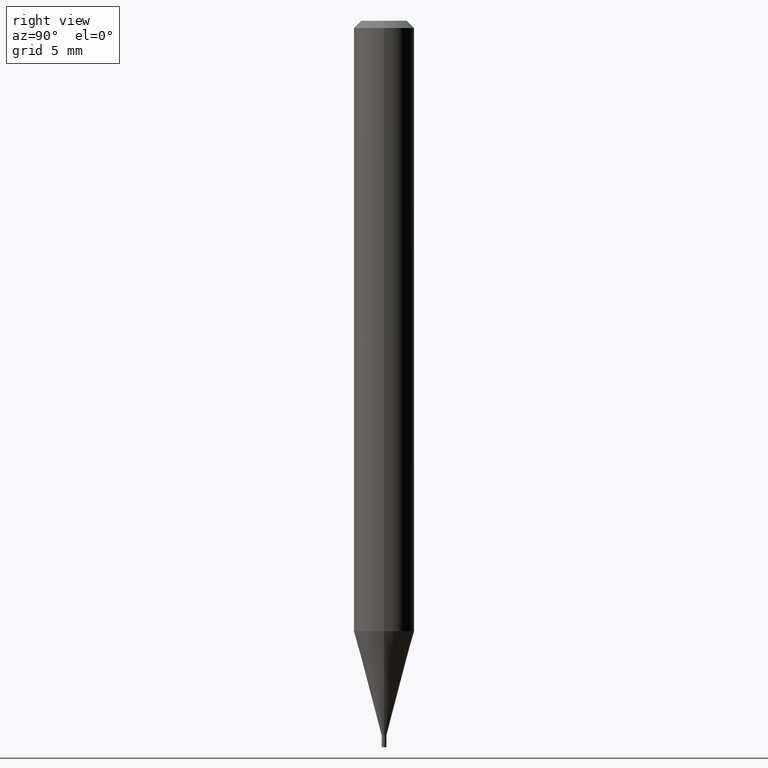
[diagram: clean part render]
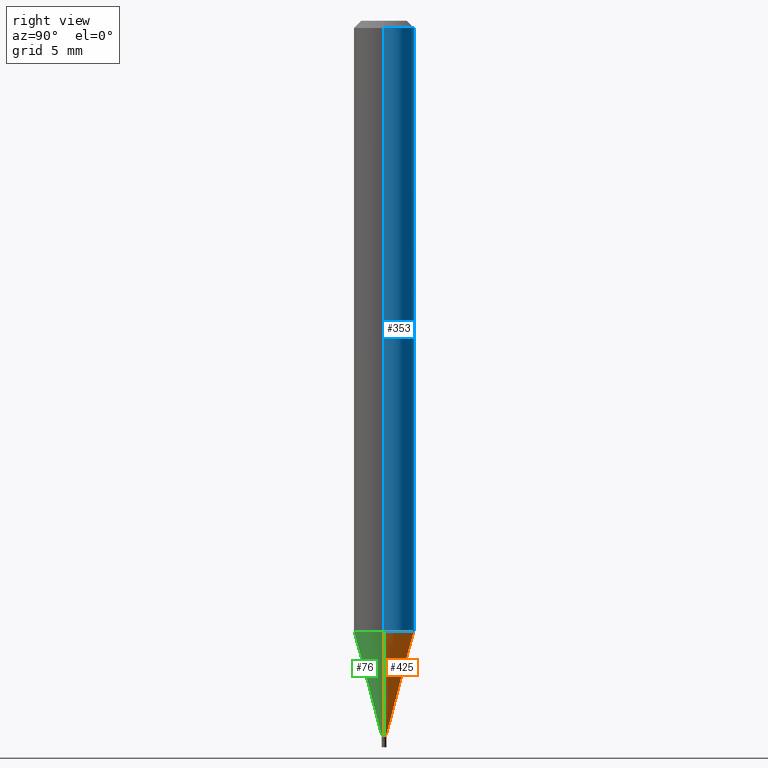
[diagram: same view with three faces highlighted in distinct colors, each labeled with its STEP entity id]
A machine part, right view with three faces highlighted in distinct colors.
Their STEP definitions:

[orange] entity #425 — the highlighted conical surface has half-angle 15 deg.
#30 = CIRCLE ( 'NONE', #381, 0.06250000000000000000 ) ;
#63 = EDGE_CURVE ( 'NONE', #138, #218, #247, .T. ) ;
#64 = DIRECTION ( 'NONE',  ( 1.000000000000000000, -6.982962677686262766E-15, 0.000000000000000000 ) ) ;
#66 = FACE_OUTER_BOUND ( 'NONE', #193, .T. ) ;
#74 = CARTESIAN_POINT ( 'NONE',  ( -0.004999999999999922042, -5.114407838005636380E-15, -1.475000000000000311 ) ) ;
#80 = AXIS2_PLACEMENT_3D ( 'NONE', #163, #298, #263 ) ;
#91 = LINE ( 'NONE', #231, #445 ) ;
#93 = CARTESIAN_POINT ( 'NONE',  ( 3.082286193725132894E-29, -4.400687794154770769E-15, -1.260407078564790062 ) ) ;
#118 = ORIENTED_EDGE ( 'NONE', *, *, #428, .F. ) ;
#122 = VERTEX_POINT ( 'NONE', #374 ) ;
#128 = VECTOR ( 'NONE', #313, 39.37007874015747433 ) ;
#138 = VERTEX_POINT ( 'NONE', #169 ) ;
#151 = CONICAL_SURFACE ( 'NONE', #80, 0.004999999999999922042, 0.2617993877991500740 ) ;
#163 = CARTESIAN_POINT ( 'NONE',  ( 3.607066489123076592E-29, -5.149934974793640632E-15, -1.475000000000000311 ) ) ;
#169 = CARTESIAN_POINT ( 'NONE',  ( -0.004999999999999922042, -4.535503211155172266E-15, -1.475000000000000311 ) ) ;
#192 = ORIENTED_EDGE ( 'NONE', *, *, #63, .T. ) ;
#193 = EDGE_LOOP ( 'NONE', ( #292, #192, #118, #284 ) ) ;
#208 = CARTESIAN_POINT ( 'NONE',  ( 0.06249999999999999306, -4.837122961510163228E-15, -1.260407078564790062 ) ) ;
#218 = VERTEX_POINT ( 'NONE', #415 ) ;
#219 = EDGE_CURVE ( 'NONE', #122, #359, #91, .T. ) ;
#223 = AXIS2_PLACEMENT_3D ( 'NONE', #413, #303, #301 ) ;
#231 = CARTESIAN_POINT ( 'NONE',  ( 0.004999999999999922042, -5.184849788182071492E-15, -1.475000000000000311 ) ) ;
#247 = LINE ( 'NONE', #74, #128 ) ;
#263 = DIRECTION ( 'NONE',  ( 1.000000000000000000, -6.982962677686247778E-15, 0.000000000000000000 ) ) ;
#284 = ORIENTED_EDGE ( 'NONE', *, *, #219, .F. ) ;
#292 = ORIENTED_EDGE ( 'NONE', *, *, #316, .T. ) ;
#298 = DIRECTION ( 'NONE',  ( -2.445468806185136597E-29, 3.491481338843145583E-15, 1.000000000000000000 ) ) ;
#300 = DIRECTION ( 'NONE',  ( 0.2588190451025213501, 1.565188264969621968E-15, 0.9659258262890682012 ) ) ;
#301 = DIRECTION ( 'NONE',  ( 1.000000000000000000, -6.982962677686247778E-15, 0.000000000000000000 ) ) ;
#303 = DIRECTION ( 'NONE',  ( -2.445468806185136597E-29, 3.491481338843145583E-15, 1.000000000000000000 ) ) ;
#304 = CIRCLE ( 'NONE', #223, 0.004999999999999922042 ) ;
#313 = DIRECTION ( 'NONE',  ( -0.2588190451025213501, 5.211531920934551042E-15, 0.9659258262890682012 ) ) ;
#316 = EDGE_CURVE ( 'NONE', #122, #138, #304, .T. ) ;
#359 = VERTEX_POINT ( 'NONE', #208 ) ;
#374 = CARTESIAN_POINT ( 'NONE',  ( 0.004999999999999922042, -5.184849788182071492E-15, -1.475000000000000311 ) ) ;
#380 = DIRECTION ( 'NONE',  ( -2.445468806185136597E-29, 3.491481338843145583E-15, 1.000000000000000000 ) ) ;
#381 = AXIS2_PLACEMENT_3D ( 'NONE', #93, #380, #64 ) ;
#413 = CARTESIAN_POINT ( 'NONE',  ( 3.607066489123076592E-29, -5.149934974793640632E-15, -1.475000000000000311 ) ) ;
#415 = CARTESIAN_POINT ( 'NONE',  ( -0.06249999999999999306, -3.956598584304708153E-15, -1.260407078564790062 ) ) ;
#425 = ADVANCED_FACE ( 'NONE', ( #66 ), #151, .T. ) ;
#428 = EDGE_CURVE ( 'NONE', #359, #218, #30, .T. ) ;
#445 = VECTOR ( 'NONE', #300, 39.37007874015747433 ) ;

[blue] entity #353 — the highlighted cylindrical surface (edge-blend (fillet) strip) has radius 1.5875 mm, axis along (-0, 0, 1).
#6 = DIRECTION ( 'NONE',  ( -2.445468806185136597E-29, 3.491481338843145583E-15, 1.000000000000000000 ) ) ;
#30 = CIRCLE ( 'NONE', #381, 0.06250000000000000000 ) ;
#59 = DIRECTION ( 'NONE',  ( -2.445468806185136877E-29, 3.491481338843145188E-15, 1.000000000000000000 ) ) ;
#64 = DIRECTION ( 'NONE',  ( 1.000000000000000000, -6.982962677686262766E-15, 0.000000000000000000 ) ) ;
#68 = CARTESIAN_POINT ( 'NONE',  ( 0.000000000000000000, 0.000000000000000000, 0.000000000000000000 ) ) ;
#88 = CARTESIAN_POINT ( 'NONE',  ( 3.668203209277705088E-31, -5.237222008264718399E-17, -0.01499999999999999944 ) ) ;
#93 = CARTESIAN_POINT ( 'NONE',  ( 3.082286193725132894E-29, -4.400687794154770769E-15, -1.260407078564790062 ) ) ;
#97 = FACE_OUTER_BOUND ( 'NONE', #229, .T. ) ;
#105 = AXIS2_PLACEMENT_3D ( 'NONE', #68, #344, #451 ) ;
#125 = EDGE_CURVE ( 'NONE', #218, #412, #156, .T. ) ;
#150 = VECTOR ( 'NONE', #59, 39.37007874015748143 ) ;
#156 = LINE ( 'NONE', #443, #266 ) ;
#167 = CARTESIAN_POINT ( 'NONE',  ( 0.06250000000000000000, -4.364351673553916694E-16, 3.047610484872459871E-30 ) ) ;
#170 = AXIS2_PLACEMENT_3D ( 'NONE', #88, #6, #442 ) ;
#183 = VERTEX_POINT ( 'NONE', #373 ) ;
#208 = CARTESIAN_POINT ( 'NONE',  ( 0.06249999999999999306, -4.837122961510163228E-15, -1.260407078564790062 ) ) ;
#218 = VERTEX_POINT ( 'NONE', #415 ) ;
#229 = EDGE_LOOP ( 'NONE', ( #318, #294, #286, #296 ) ) ;
#244 = CIRCLE ( 'NONE', #170, 0.06250000000000000000 ) ;
#254 = EDGE_CURVE ( 'NONE', #183, #412, #244, .T. ) ;
#266 = VECTOR ( 'NONE', #272, 39.37007874015748143 ) ;
#272 = DIRECTION ( 'NONE',  ( -2.445468806185136877E-29, 3.491481338843145188E-15, 1.000000000000000000 ) ) ;
#286 = ORIENTED_EDGE ( 'NONE', *, *, #254, .F. ) ;
#289 = EDGE_CURVE ( 'NONE', #359, #183, #310, .T. ) ;
#294 = ORIENTED_EDGE ( 'NONE', *, *, #125, .T. ) ;
#296 = ORIENTED_EDGE ( 'NONE', *, *, #289, .F. ) ;
#310 = LINE ( 'NONE', #167, #150 ) ;
#318 = ORIENTED_EDGE ( 'NONE', *, *, #428, .T. ) ;
#344 = DIRECTION ( 'NONE',  ( -2.445468806185136597E-29, 3.491481338843145583E-15, 1.000000000000000000 ) ) ;
#348 = CARTESIAN_POINT ( 'NONE',  ( -0.06250000000000000000, -1.782440797268646111E-15, -0.01499999999999999944 ) ) ;
#353 = ADVANCED_FACE ( 'NONE', ( #97 ), #448, .T. ) ;
#359 = VERTEX_POINT ( 'NONE', #208 ) ;
#373 = CARTESIAN_POINT ( 'NONE',  ( 0.06250000000000000000, -4.888073874380388472E-16, -0.01499999999999999944 ) ) ;
#380 = DIRECTION ( 'NONE',  ( -2.445468806185136597E-29, 3.491481338843145583E-15, 1.000000000000000000 ) ) ;
#381 = AXIS2_PLACEMENT_3D ( 'NONE', #93, #380, #64 ) ;
#412 = VERTEX_POINT ( 'NONE', #348 ) ;
#415 = CARTESIAN_POINT ( 'NONE',  ( -0.06249999999999999306, -3.956598584304708153E-15, -1.260407078564790062 ) ) ;
#428 = EDGE_CURVE ( 'NONE', #359, #218, #30, .T. ) ;
#442 = DIRECTION ( 'NONE',  ( 1.000000000000000000, -6.982962677686266711E-15, 0.000000000000000000 ) ) ;
#443 = CARTESIAN_POINT ( 'NONE',  ( -0.06250000000000000000, 4.440892098500626162E-16, -3.074334431409316114E-30 ) ) ;
#448 = CYLINDRICAL_SURFACE ( 'NONE', #105, 0.06250000000000000000 ) ;
#451 = DIRECTION ( 'NONE',  ( 1.000000000000000000, -6.982962677686266711E-15, 4.876176775795935793E-29 ) ) ;

[green] entity #76 — the highlighted conical surface has half-angle 15 deg.
#4 = FACE_OUTER_BOUND ( 'NONE', #82, .T. ) ;
#10 = CIRCLE ( 'NONE', #452, 0.06250000000000000000 ) ;
#43 = DIRECTION ( 'NONE',  ( 1.000000000000000000, -6.982962677686247778E-15, 0.000000000000000000 ) ) ;
#63 = EDGE_CURVE ( 'NONE', #138, #218, #247, .T. ) ;
#71 = DIRECTION ( 'NONE',  ( 1.000000000000000000, -6.982962677686262766E-15, 0.000000000000000000 ) ) ;
#74 = CARTESIAN_POINT ( 'NONE',  ( -0.004999999999999922042, -5.114407838005636380E-15, -1.475000000000000311 ) ) ;
#75 = ORIENTED_EDGE ( 'NONE', *, *, #85, .T. ) ;
#76 = ADVANCED_FACE ( 'NONE', ( #4 ), #386, .T. ) ;
#82 = EDGE_LOOP ( 'NONE', ( #143, #75, #426, #362 ) ) ;
#85 = EDGE_CURVE ( 'NONE', #138, #122, #401, .T. ) ;
#91 = LINE ( 'NONE', #231, #445 ) ;
#122 = VERTEX_POINT ( 'NONE', #374 ) ;
#128 = VECTOR ( 'NONE', #313, 39.37007874015747433 ) ;
#138 = VERTEX_POINT ( 'NONE', #169 ) ;
#143 = ORIENTED_EDGE ( 'NONE', *, *, #63, .F. ) ;
#144 = CARTESIAN_POINT ( 'NONE',  ( 3.607066489123076592E-29, -5.149934974793640632E-15, -1.475000000000000311 ) ) ;
#169 = CARTESIAN_POINT ( 'NONE',  ( -0.004999999999999922042, -4.535503211155172266E-15, -1.475000000000000311 ) ) ;
#178 = DIRECTION ( 'NONE',  ( 1.000000000000000000, -6.982962677686247778E-15, 0.000000000000000000 ) ) ;
#186 = DIRECTION ( 'NONE',  ( -2.445468806185136597E-29, 3.491481338843145583E-15, 1.000000000000000000 ) ) ;
#208 = CARTESIAN_POINT ( 'NONE',  ( 0.06249999999999999306, -4.837122961510163228E-15, -1.260407078564790062 ) ) ;
#218 = VERTEX_POINT ( 'NONE', #415 ) ;
#219 = EDGE_CURVE ( 'NONE', #122, #359, #91, .T. ) ;
#231 = CARTESIAN_POINT ( 'NONE',  ( 0.004999999999999922042, -5.184849788182071492E-15, -1.475000000000000311 ) ) ;
#247 = LINE ( 'NONE', #74, #128 ) ;
#268 = DIRECTION ( 'NONE',  ( -2.445468806185136597E-29, 3.491481338843145583E-15, 1.000000000000000000 ) ) ;
#300 = DIRECTION ( 'NONE',  ( 0.2588190451025213501, 1.565188264969621968E-15, 0.9659258262890682012 ) ) ;
#307 = EDGE_CURVE ( 'NONE', #218, #359, #10, .T. ) ;
#313 = DIRECTION ( 'NONE',  ( -0.2588190451025213501, 5.211531920934551042E-15, 0.9659258262890682012 ) ) ;
#338 = CARTESIAN_POINT ( 'NONE',  ( 3.082286193725132894E-29, -4.400687794154770769E-15, -1.260407078564790062 ) ) ;
#357 = AXIS2_PLACEMENT_3D ( 'NONE', #365, #436, #178 ) ;
#359 = VERTEX_POINT ( 'NONE', #208 ) ;
#362 = ORIENTED_EDGE ( 'NONE', *, *, #307, .F. ) ;
#365 = CARTESIAN_POINT ( 'NONE',  ( 3.607066489123076592E-29, -5.149934974793640632E-15, -1.475000000000000311 ) ) ;
#374 = CARTESIAN_POINT ( 'NONE',  ( 0.004999999999999922042, -5.184849788182071492E-15, -1.475000000000000311 ) ) ;
#386 = CONICAL_SURFACE ( 'NONE', #409, 0.004999999999999922042, 0.2617993877991500740 ) ;
#401 = CIRCLE ( 'NONE', #357, 0.004999999999999922042 ) ;
#409 = AXIS2_PLACEMENT_3D ( 'NONE', #144, #186, #43 ) ;
#415 = CARTESIAN_POINT ( 'NONE',  ( -0.06249999999999999306, -3.956598584304708153E-15, -1.260407078564790062 ) ) ;
#426 = ORIENTED_EDGE ( 'NONE', *, *, #219, .T. ) ;
#436 = DIRECTION ( 'NONE',  ( -2.445468806185136597E-29, 3.491481338843145583E-15, 1.000000000000000000 ) ) ;
#445 = VECTOR ( 'NONE', #300, 39.37007874015747433 ) ;
#452 = AXIS2_PLACEMENT_3D ( 'NONE', #338, #268, #71 ) ;